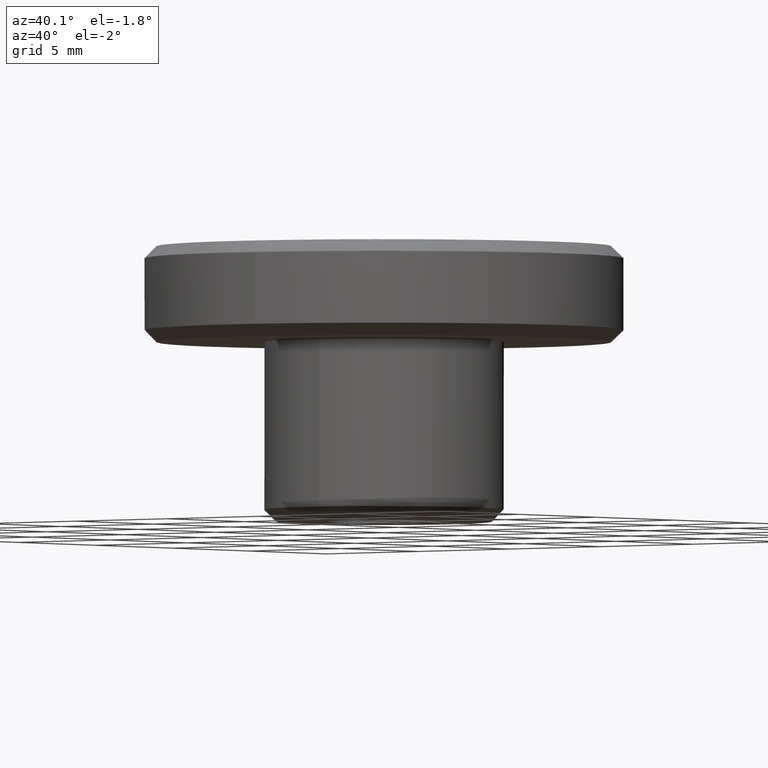
[diagram: clean part render]
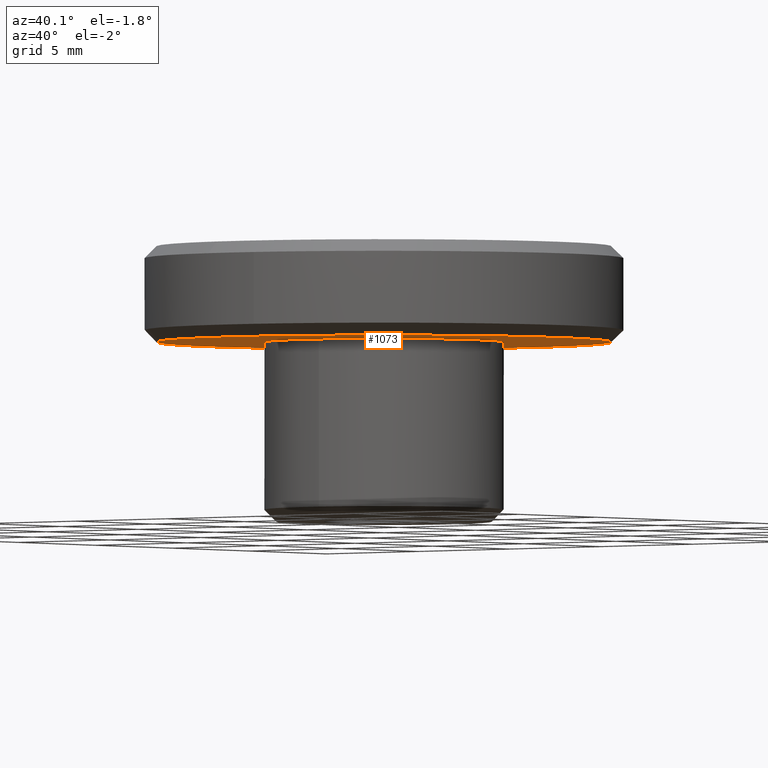
[diagram: same view with one face highlighted and labeled with its STEP entity id]
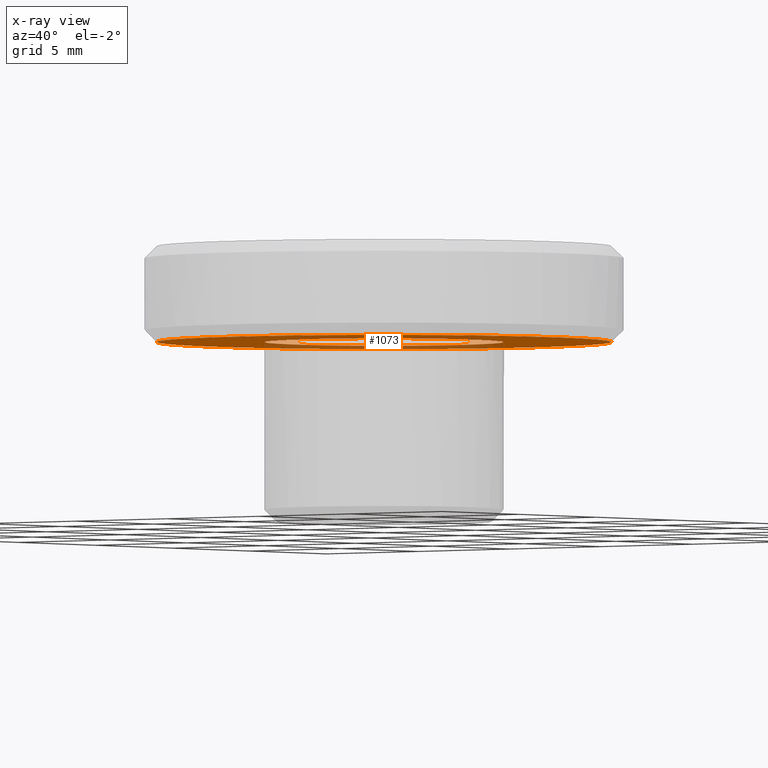
[diagram: x-ray of the same camera — body ghosted, the highlighted face saturated]
A machine part, auxiliary view. The second image highlights one B-rep face of the part: STEP entity #1073.
The next image is the same camera in x-ray: the body ghosted, the highlighted face saturated — about 25% of this face is hidden behind the body in this view.
In plain terms, the highlighted face is a freeform B-spline surface patch.
Its self-contained STEP definition (entity closure, byte-faithful):
#286=CARTESIAN_POINT('',(9.500000000000000,0.0,7.500000000000000));
#287=VERTEX_POINT('',#286);
#288=CARTESIAN_POINT('',(7.779228070752899,-5.452853438632856,7.500000000000004));
#289=VERTEX_POINT('',#288);
#290=CARTESIAN_POINT('',(9.500000000000000,0.0,7.500000000000000));
#291=CARTESIAN_POINT('',(9.500000000000002,-2.997941080174386,7.500000000000001));
#292=CARTESIAN_POINT('',(7.779228070752899,-5.452853438632856,7.500000000000004));
#300=(BOUNDED_CURVE()B_SPLINE_CURVE(2,(#290,#291,#292),.UNSPECIFIED.,.F.,.U.)B_SPLINE_CURVE_WITH_KNOTS((3,3),(0.0,0.098673726202874),.UNSPECIFIED.)CURVE()GEOMETRIC_REPRESENTATION_ITEM()RATIONAL_B_SPLINE_CURVE((1.0,0.884396538880492,0.860049271925871))REPRESENTATION_ITEM(''));
#301=EDGE_CURVE('',#287,#289,#300,.T.);
#303=CARTESIAN_POINT('',(-9.500000000000000,0.0,7.500000000000000));
#304=VERTEX_POINT('',#303);
#305=CARTESIAN_POINT('',(-9.500000000000000,0.0,7.500000000000000));
#306=CARTESIAN_POINT('',(-9.500000000000000,9.500000000000000,7.500000000000000));
#307=CARTESIAN_POINT('',(0.0,9.500000000000000,7.500000000000000));
#308=CARTESIAN_POINT('',(9.500000000000000,9.500000000000000,7.500000000000000));
#309=CARTESIAN_POINT('',(9.500000000000000,0.0,7.500000000000000));
#317=(BOUNDED_CURVE()B_SPLINE_CURVE(2,(#305,#306,#307,#308,#309),.UNSPECIFIED.,.F.,.U.)B_SPLINE_CURVE_WITH_KNOTS((3,2,3),(0.500000000000000,0.750000000000000,1.0),.UNSPECIFIED.)CURVE()GEOMETRIC_REPRESENTATION_ITEM()RATIONAL_B_SPLINE_CURVE((1.0,0.707106781186548,1.0,0.707106781186548,1.0))REPRESENTATION_ITEM(''));
#318=EDGE_CURVE('',#304,#287,#317,.T.);
#320=CARTESIAN_POINT('',(0.082902087252670,-9.499638269111934,7.500000000002467));
#321=VERTEX_POINT('',#320);
#322=CARTESIAN_POINT('',(0.082902087252670,-9.499638269111934,7.500000000002467));
#323=CARTESIAN_POINT('',(0.041451832814762,-9.499999999999998,7.500000000000000));
#324=CARTESIAN_POINT('',(0.0,-9.500000000000000,7.500000000000000));
#325=CARTESIAN_POINT('',(-9.500000000000000,-9.500000000000000,7.500000000000000));
#326=CARTESIAN_POINT('',(-9.500000000000000,0.0,7.500000000000000));
#334=(BOUNDED_CURVE()B_SPLINE_CURVE(2,(#322,#323,#324,#325,#326),.UNSPECIFIED.,.F.,.U.)B_SPLINE_CURVE_WITH_KNOTS((3,2,3),(0.248460105664342,0.250000000000000,0.500000000000000),.UNSPECIFIED.)CURVE()GEOMETRIC_REPRESENTATION_ITEM()RATIONAL_B_SPLINE_CURVE((0.996414028098853,0.998195901565586,1.0,0.707106781186548,1.0))REPRESENTATION_ITEM(''));
#335=EDGE_CURVE('',#321,#304,#334,.T.);
#430=CARTESIAN_POINT('',(7.779228070752899,-5.452853438632856,7.500000000000004));
#431=CARTESIAN_POINT('',(4.972542842354434,-9.456967020676764,7.500000000000001));
#432=CARTESIAN_POINT('',(0.082902087252670,-9.499638269111934,7.500000000002467));
#440=(BOUNDED_CURVE()B_SPLINE_CURVE(2,(#430,#431,#432),.UNSPECIFIED.,.F.,.U.)B_SPLINE_CURVE_WITH_KNOTS((3,3),(0.098673726202873,0.248460105664342),.UNSPECIFIED.)CURVE()GEOMETRIC_REPRESENTATION_ITEM()RATIONAL_B_SPLINE_CURVE((0.860049271925871,0.823090203820786,0.996414028098853))REPRESENTATION_ITEM(''));
#441=EDGE_CURVE('',#289,#321,#440,.T.);
#879=CARTESIAN_POINT('',(-0.043628661551656,4.999809650364210,7.500000000000000));
#880=VERTEX_POINT('',#879);
#886=CARTESIAN_POINT('',(5.0,0.0,7.500000000000000));
#887=VERTEX_POINT('',#886);
#888=CARTESIAN_POINT('',(-0.043628661551656,4.999809650364210,7.500000000000000));
#889=CARTESIAN_POINT('',(-0.021814746018728,5.0,7.500000000000000));
#890=CARTESIAN_POINT('',(0.0,5.0,7.500000000000000));
#891=CARTESIAN_POINT('',(5.000000000000001,5.000000000000001,7.500000000000000));
#892=CARTESIAN_POINT('',(5.0,0.0,7.500000000000000));
#900=(BOUNDED_CURVE()B_SPLINE_CURVE(2,(#888,#889,#890,#891,#892),.UNSPECIFIED.,.F.,.U.)B_SPLINE_CURVE_WITH_KNOTS((3,2,3),(0.248460247146196,0.250000000000000,0.500000000000000),.UNSPECIFIED.)CURVE()GEOMETRIC_REPRESENTATION_ITEM()RATIONAL_B_SPLINE_CURVE((0.996414355527691,0.998196067321889,1.0,0.707106781186548,1.0))REPRESENTATION_ITEM(''));
#901=EDGE_CURVE('',#880,#887,#900,.T.);
#903=CARTESIAN_POINT('',(0.620634546352657,-4.961331752649010,7.500000000000000));
#904=VERTEX_POINT('',#903);
#905=CARTESIAN_POINT('',(5.0,0.0,7.500000000000000));
#906=CARTESIAN_POINT('',(5.0,-4.413497899335222,7.500000000000000));
#907=CARTESIAN_POINT('',(0.620634546352657,-4.961331752649010,7.500000000000000));
#915=(BOUNDED_CURVE()B_SPLINE_CURVE(2,(#905,#906,#907),.UNSPECIFIED.,.F.,.U.)B_SPLINE_CURVE_WITH_KNOTS((3,3),(0.500000000000000,0.728526256763575),.UNSPECIFIED.)CURVE()GEOMETRIC_REPRESENTATION_ITEM()RATIONAL_B_SPLINE_CURVE((1.0,0.732264836292508,0.954005790713464))REPRESENTATION_ITEM(''));
#916=EDGE_CURVE('',#887,#904,#915,.T.);
#951=CARTESIAN_POINT('',(-5.0,0.0,7.500000000000000));
#952=VERTEX_POINT('',#951);
#953=CARTESIAN_POINT('',(0.620634546352657,-4.961331752649010,7.500000000000000));
#954=CARTESIAN_POINT('',(0.311521873663028,-5.0,7.500000000000001));
#955=CARTESIAN_POINT('',(0.0,-5.0,7.500000000000000));
#956=CARTESIAN_POINT('',(-5.000000000000001,-5.000000000000001,7.500000000000000));
#957=CARTESIAN_POINT('',(-5.0,0.0,7.500000000000000));
#965=(BOUNDED_CURVE()B_SPLINE_CURVE(2,(#953,#954,#955,#956,#957),.UNSPECIFIED.,.F.,.U.)B_SPLINE_CURVE_WITH_KNOTS((3,2,3),(0.728526256763575,0.750000000000000,1.0),.UNSPECIFIED.)CURVE()GEOMETRIC_REPRESENTATION_ITEM()RATIONAL_B_SPLINE_CURVE((0.954005790713464,0.974841944894039,1.0,0.707106781186548,1.0))REPRESENTATION_ITEM(''));
#966=EDGE_CURVE('',#904,#952,#965,.T.);
#968=CARTESIAN_POINT('',(-5.0,0.0,7.500000000000000));
#969=CARTESIAN_POINT('',(-4.999999999999999,4.956560034326192,7.500000000000000));
#970=CARTESIAN_POINT('',(-0.043628661551656,4.999809650364210,7.500000000000000));
#978=(BOUNDED_CURVE()B_SPLINE_CURVE(2,(#968,#969,#970),.UNSPECIFIED.,.F.,.U.)B_SPLINE_CURVE_WITH_KNOTS((3,3),(0.0,0.248460247146196),.UNSPECIFIED.)CURVE()GEOMETRIC_REPRESENTATION_ITEM()RATIONAL_B_SPLINE_CURVE((1.0,0.708910713864659,0.996414355527691))REPRESENTATION_ITEM(''));
#979=EDGE_CURVE('',#952,#880,#978,.T.);
#1056=CARTESIAN_POINT('',(-10.449049963174311,-10.448670594845110,7.500000000000000));
#1057=CARTESIAN_POINT('',(10.449050472794029,-10.448670594845110,7.500000000000000));
#1058=CARTESIAN_POINT('',(-10.449049963174311,10.449032424841221,7.500000000000000));
#1059=CARTESIAN_POINT('',(10.449050472794029,10.449032424841221,7.500000000000000));
#1060=B_SPLINE_SURFACE_WITH_KNOTS('',1,1,((#1056,#1058),(#1057,#1059)),.UNSPECIFIED.,.F.,.F.,.U.,(2,2),(2,2),(0.0,20.898100435968342),(0.0,20.897703019686329),.UNSPECIFIED.);
#1061=ORIENTED_EDGE('',*,*,#301,.T.);
#1062=ORIENTED_EDGE('',*,*,#441,.T.);
#1063=ORIENTED_EDGE('',*,*,#335,.T.);
#1064=ORIENTED_EDGE('',*,*,#318,.T.);
#1065=EDGE_LOOP('',(#1061,#1062,#1063,#1064));
#1066=FACE_OUTER_BOUND('',#1065,.T.);
#1067=ORIENTED_EDGE('',*,*,#979,.F.);
#1068=ORIENTED_EDGE('',*,*,#966,.F.);
#1069=ORIENTED_EDGE('',*,*,#916,.F.);
#1070=ORIENTED_EDGE('',*,*,#901,.F.);
#1071=EDGE_LOOP('',(#1067,#1068,#1069,#1070));
#1072=FACE_BOUND('',#1071,.T.);
#1073=ADVANCED_FACE('',(#1066,#1072),#1060,.F.);